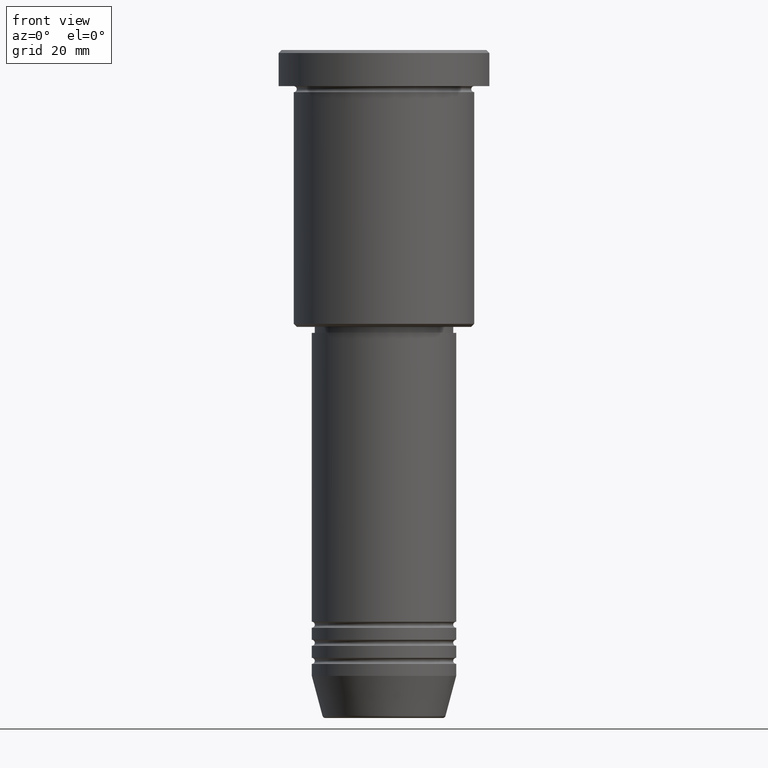
[diagram: clean part render]
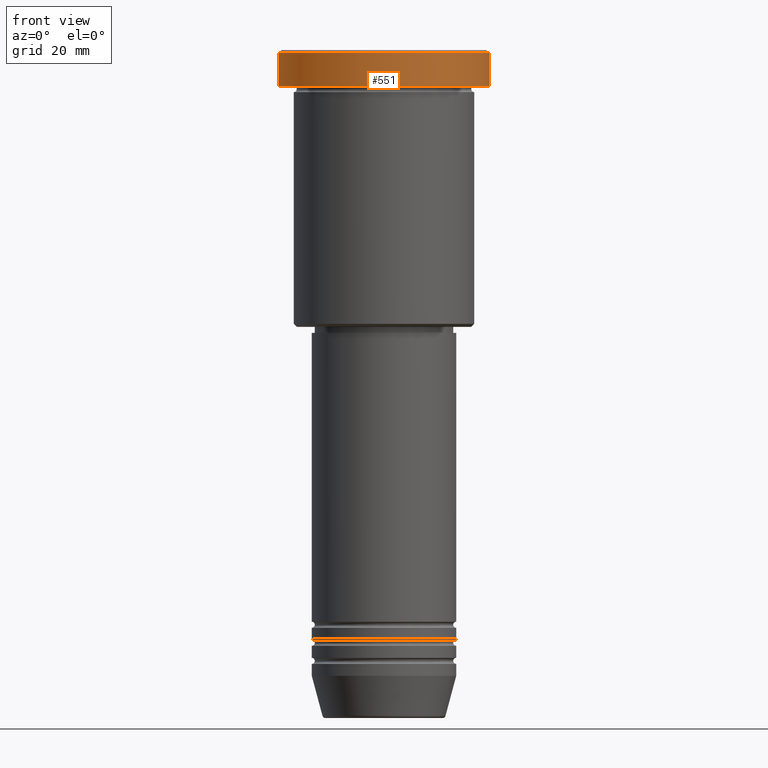
[diagram: same view with one face highlighted and labeled with its STEP entity id]
A machine part, front view. The second image highlights one B-rep face of the part: STEP entity #551.
In plain terms, the highlighted cylindrical surface (partial cylindrical patch) has radius 17.5 mm, axis along (-0, -0, 1).
Its self-contained STEP definition (entity closure, byte-faithful):
#32 = VECTOR ( 'NONE', #659, 1000.000000000000000 ) ;
#39 = CARTESIAN_POINT ( 'NONE',  ( -17.50000000000000000, 2.143131898507868248E-15, -5.999999999999995559 ) ) ;
#50 = ORIENTED_EDGE ( 'NONE', *, *, #799, .F. ) ;
#55 = CARTESIAN_POINT ( 'NONE',  ( 0.000000000000000000, 0.000000000000000000, 0.000000000000000000 ) ) ;
#157 = ORIENTED_EDGE ( 'NONE', *, *, #984, .T. ) ;
#180 = CARTESIAN_POINT ( 'NONE',  ( 0.000000000000000000, 0.000000000000000000, -5.999999999999995559 ) ) ;
#185 = CARTESIAN_POINT ( 'NONE',  ( -17.50000000000000000, 2.143131898507868248E-15, -0.5000000000000281997 ) ) ;
#197 = LINE ( 'NONE', #1115, #32 ) ;
#233 = DIRECTION ( 'NONE',  ( 1.000000000000000000, 0.000000000000000000, 0.000000000000000000 ) ) ;
#237 = AXIS2_PLACEMENT_3D ( 'NONE', #55, #1051, #233 ) ;
#238 = AXIS2_PLACEMENT_3D ( 'NONE', #625, #1004, #996 ) ;
#266 = VERTEX_POINT ( 'NONE', #185 ) ;
#305 = FACE_OUTER_BOUND ( 'NONE', #1106, .T. ) ;
#306 = VECTOR ( 'NONE', #1127, 1000.000000000000000 ) ;
#459 = DIRECTION ( 'NONE',  ( -0.000000000000000000, -0.000000000000000000, 1.000000000000000000 ) ) ;
#495 = CYLINDRICAL_SURFACE ( 'NONE', #237, 17.50000000000000000 ) ;
#551 = ADVANCED_FACE ( 'NONE', ( #305 ), #495, .T. ) ;
#625 = CARTESIAN_POINT ( 'NONE',  ( 0.000000000000000000, 0.000000000000000000, -0.5000000000000281997 ) ) ;
#659 = DIRECTION ( 'NONE',  ( -0.000000000000000000, -0.000000000000000000, 1.000000000000000000 ) ) ;
#663 = VERTEX_POINT ( 'NONE', #718 ) ;
#664 = CIRCLE ( 'NONE', #1155, 17.50000000000000000 ) ;
#718 = CARTESIAN_POINT ( 'NONE',  ( 17.50000000000000000, 0.000000000000000000, -5.999999999999995559 ) ) ;
#752 = CARTESIAN_POINT ( 'NONE',  ( 17.50000000000000000, 0.000000000000000000, 0.000000000000000000 ) ) ;
#753 = EDGE_CURVE ( 'NONE', #830, #663, #664, .T. ) ;
#787 = ORIENTED_EDGE ( 'NONE', *, *, #753, .T. ) ;
#799 = EDGE_CURVE ( 'NONE', #830, #266, #197, .T. ) ;
#812 = EDGE_CURVE ( 'NONE', #663, #1067, #820, .T. ) ;
#820 = LINE ( 'NONE', #752, #306 ) ;
#830 = VERTEX_POINT ( 'NONE', #39 ) ;
#984 = EDGE_CURVE ( 'NONE', #1067, #266, #1044, .T. ) ;
#996 = DIRECTION ( 'NONE',  ( 1.000000000000000000, 0.000000000000000000, 0.000000000000000000 ) ) ;
#1004 = DIRECTION ( 'NONE',  ( 0.000000000000000000, 0.000000000000000000, -1.000000000000000000 ) ) ;
#1014 = CARTESIAN_POINT ( 'NONE',  ( 17.50000000000000000, 0.000000000000000000, -0.5000000000000281997 ) ) ;
#1044 = CIRCLE ( 'NONE', #238, 17.50000000000000000 ) ;
#1051 = DIRECTION ( 'NONE',  ( -0.000000000000000000, -0.000000000000000000, 1.000000000000000000 ) ) ;
#1067 = VERTEX_POINT ( 'NONE', #1014 ) ;
#1102 = DIRECTION ( 'NONE',  ( 1.000000000000000000, 0.000000000000000000, 0.000000000000000000 ) ) ;
#1106 = EDGE_LOOP ( 'NONE', ( #50, #787, #1118, #157 ) ) ;
#1115 = CARTESIAN_POINT ( 'NONE',  ( -17.50000000000000000, 2.143131898507868248E-15, 0.000000000000000000 ) ) ;
#1118 = ORIENTED_EDGE ( 'NONE', *, *, #812, .T. ) ;
#1127 = DIRECTION ( 'NONE',  ( -0.000000000000000000, -0.000000000000000000, 1.000000000000000000 ) ) ;
#1155 = AXIS2_PLACEMENT_3D ( 'NONE', #180, #459, #1102 ) ;